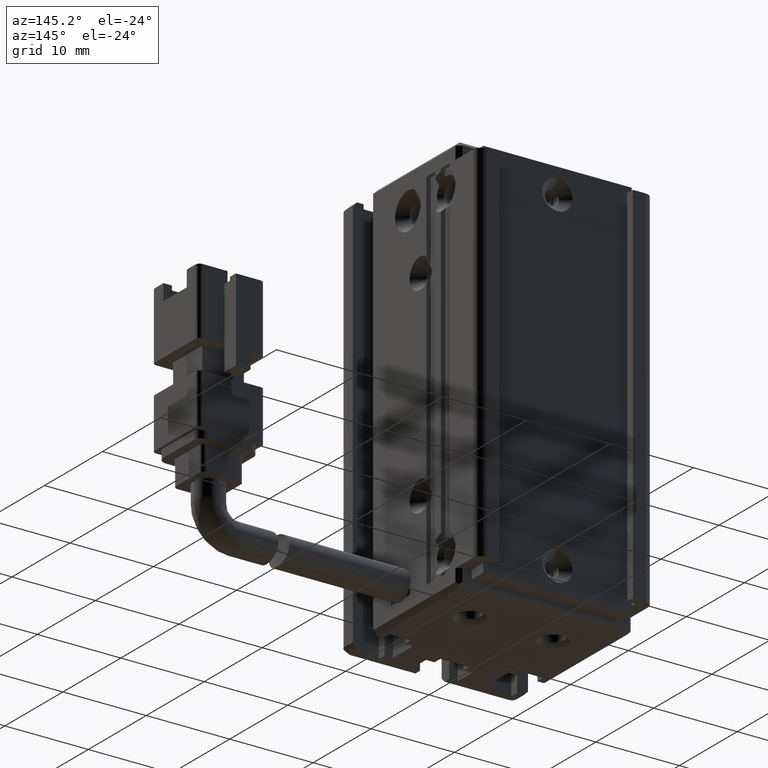
[diagram: clean part render]
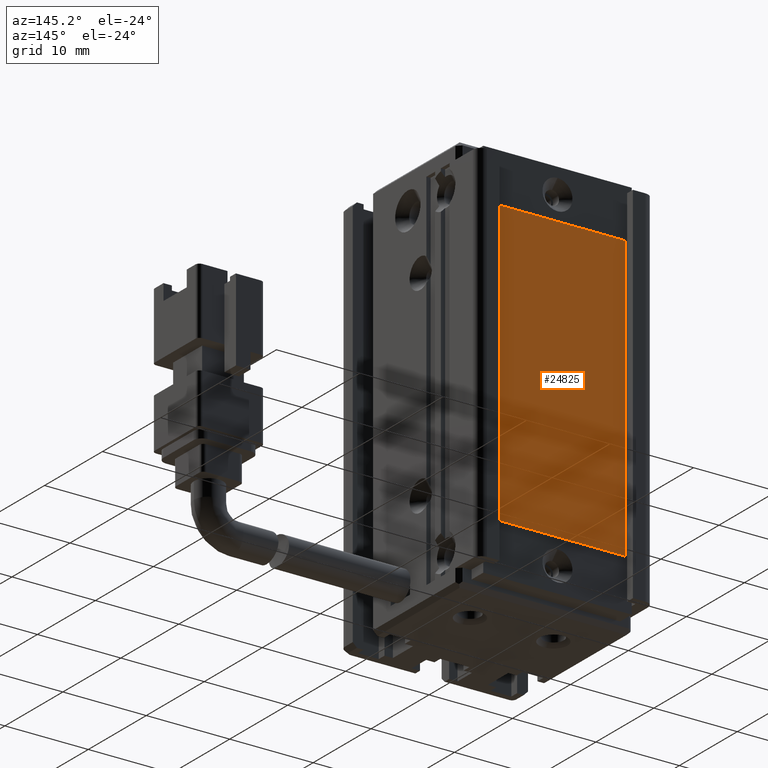
[diagram: same view with one face highlighted and labeled with its STEP entity id]
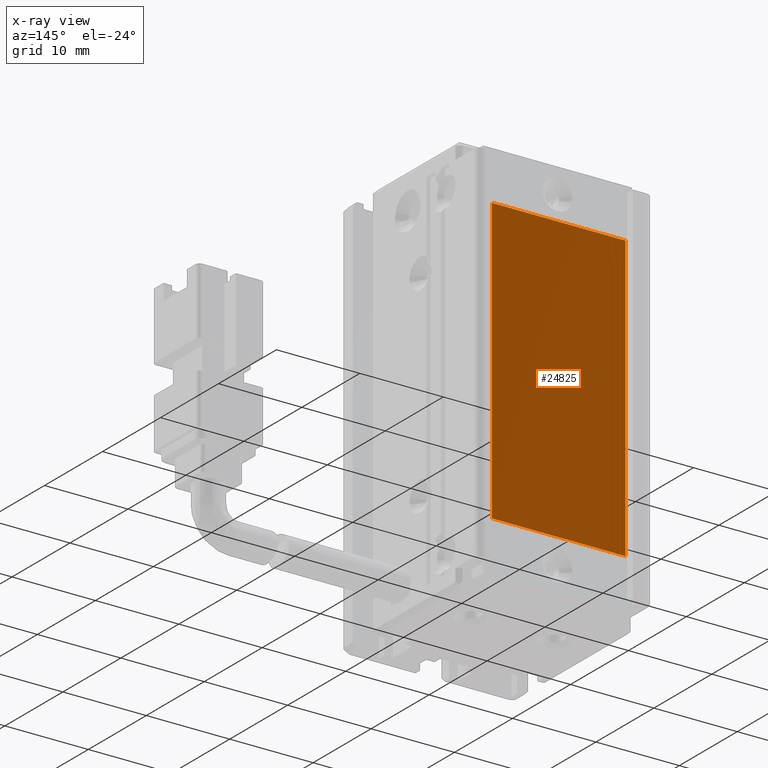
[diagram: x-ray of the same camera — body ghosted, the highlighted face saturated]
A machine part, auxiliary view. The second image highlights one B-rep face of the part: STEP entity #24825.
The next image is the same camera in x-ray: the body ghosted, the highlighted face saturated — about 0% of this face is hidden behind the body in this view.
In plain terms, the highlighted planar face has unit normal (0, 1, 0).
Its self-contained STEP definition (entity closure, byte-faithful):
#2809 = FACE_OUTER_BOUND ( 'NONE', #16204, .T. ) ;
#3271 = LINE ( 'NONE', #33424, #21537 ) ;
#3967 = EDGE_CURVE ( 'NONE', #20150, #7562, #3271, .T. ) ;
#5008 = VECTOR ( 'NONE', #7425, 1000.000000000000000 ) ;
#5425 = AXIS2_PLACEMENT_3D ( 'NONE', #15275, #9801, #18407 ) ;
#5491 = ORIENTED_EDGE ( 'NONE', *, *, #19786, .T. ) ;
#7425 = DIRECTION ( 'NONE',  ( 1.000000000000000000, 0.0000000000000000000, 0.0000000000000000000 ) ) ;
#7562 = VERTEX_POINT ( 'NONE', #11681 ) ;
#9784 = VECTOR ( 'NONE', #35703, 1000.000000000000000 ) ;
#9801 = DIRECTION ( 'NONE',  ( 0.0000000000000000000, 1.000000000000000000, 0.0000000000000000000 ) ) ;
#10707 = LINE ( 'NONE', #16735, #5008 ) ;
#10745 = LINE ( 'NONE', #30211, #9784 ) ;
#11681 = CARTESIAN_POINT ( 'NONE',  ( 32.92537974683542500, 33.69073232304836600, -132.0000000000000000 ) ) ;
#12383 = CARTESIAN_POINT ( 'NONE',  ( 32.92537974683542500, 33.69073232304836600, -98.00000000000000000 ) ) ;
#15275 = CARTESIAN_POINT ( 'NONE',  ( 0.0000000000000000000, 33.69073232304836600, 0.0000000000000000000 ) ) ;
#15549 = ORIENTED_EDGE ( 'NONE', *, *, #35438, .T. ) ;
#16204 = EDGE_LOOP ( 'NONE', ( #22470, #5491, #15549, #34561 ) ) ;
#16735 = CARTESIAN_POINT ( 'NONE',  ( 32.92537974683542500, 33.69073232304836600, -98.00000000000000000 ) ) ;
#17701 = DIRECTION ( 'NONE',  ( 0.0000000000000000000, 0.0000000000000000000, 1.000000000000000000 ) ) ;
#18407 = DIRECTION ( 'NONE',  ( 0.0000000000000000000, -0.0000000000000000000, 1.000000000000000000 ) ) ;
#19786 = EDGE_CURVE ( 'NONE', #25297, #34021, #10707, .T. ) ;
#20150 = VERTEX_POINT ( 'NONE', #33436 ) ;
#20958 = EDGE_CURVE ( 'NONE', #7562, #25297, #36934, .T. ) ;
#21324 = CARTESIAN_POINT ( 'NONE',  ( 48.92537974683541800, 33.69073232304836600, -98.00000000000000000 ) ) ;
#21537 = VECTOR ( 'NONE', #28320, 1000.000000000000000 ) ;
#22470 = ORIENTED_EDGE ( 'NONE', *, *, #20958, .T. ) ;
#23904 = VECTOR ( 'NONE', #17701, 1000.000000000000000 ) ;
#24825 = ADVANCED_FACE ( 'NONE', ( #2809 ), #33693, .T. ) ;
#25297 = VERTEX_POINT ( 'NONE', #12383 ) ;
#28320 = DIRECTION ( 'NONE',  ( -1.000000000000000000, 0.0000000000000000000, 0.0000000000000000000 ) ) ;
#30211 = CARTESIAN_POINT ( 'NONE',  ( 48.92537974683541800, 33.69073232304836600, -98.00000000000000000 ) ) ;
#32231 = CARTESIAN_POINT ( 'NONE',  ( 32.92537974683542500, 33.69073232304836600, -132.0000000000000000 ) ) ;
#33424 = CARTESIAN_POINT ( 'NONE',  ( 48.92537974683541800, 33.69073232304836600, -132.0000000000000000 ) ) ;
#33436 = CARTESIAN_POINT ( 'NONE',  ( 48.92537974683541800, 33.69073232304836600, -132.0000000000000000 ) ) ;
#33693 = PLANE ( 'NONE',  #5425 ) ;
#34021 = VERTEX_POINT ( 'NONE', #21324 ) ;
#34561 = ORIENTED_EDGE ( 'NONE', *, *, #3967, .T. ) ;
#35438 = EDGE_CURVE ( 'NONE', #34021, #20150, #10745, .T. ) ;
#35703 = DIRECTION ( 'NONE',  ( 0.0000000000000000000, 0.0000000000000000000, -1.000000000000000000 ) ) ;
#36934 = LINE ( 'NONE', #32231, #23904 ) ;